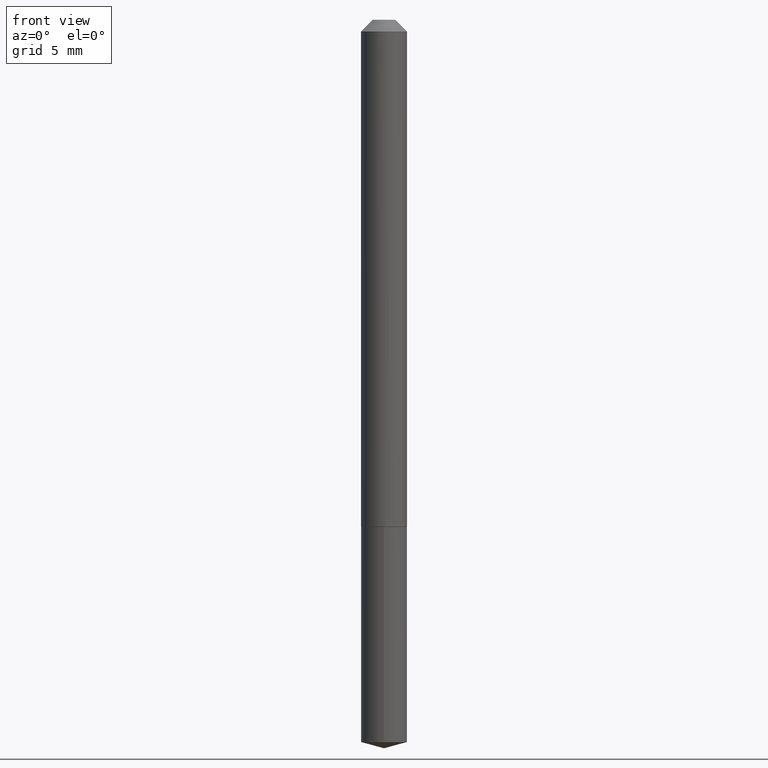
[diagram: clean part render]
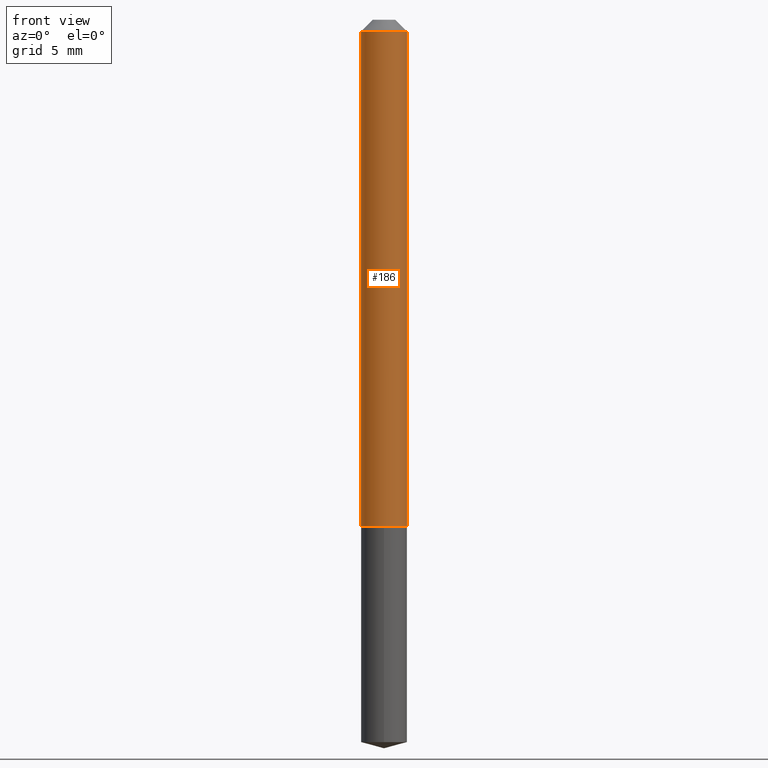
[diagram: same view with one face highlighted and labeled with its STEP entity id]
A machine part, front view. The second image highlights one B-rep face of the part: STEP entity #186.
In plain terms, the highlighted cylindrical surface (edge-blend (fillet) strip) has radius 1.5494 mm, axis along (-0, 0, 1).
Its self-contained STEP definition (entity closure, byte-faithful):
#21 = ORIENTED_EDGE ( 'NONE', *, *, #378, .T. ) ;
#41 = DIRECTION ( 'NONE',  ( 1.000000000000000000, -6.982962677686266711E-15, 4.876176775795935793E-29 ) ) ;
#43 = DIRECTION ( 'NONE',  ( -2.445468806185136597E-29, 3.491481338843145583E-15, 1.000000000000000000 ) ) ;
#65 = DIRECTION ( 'NONE',  ( -2.445468806185136877E-29, 3.491481338843145188E-15, 1.000000000000000000 ) ) ;
#74 = VECTOR ( 'NONE', #65, 39.37007874015748143 ) ;
#76 = DIRECTION ( 'NONE',  ( 1.000000000000000000, -6.982962677686265922E-15, 0.000000000000000000 ) ) ;
#78 = VERTEX_POINT ( 'NONE', #217 ) ;
#82 = AXIS2_PLACEMENT_3D ( 'NONE', #171, #327, #76 ) ;
#85 = EDGE_CURVE ( 'NONE', #248, #238, #216, .T. ) ;
#115 = ORIENTED_EDGE ( 'NONE', *, *, #158, .F. ) ;
#128 = FACE_OUTER_BOUND ( 'NONE', #169, .T. ) ;
#158 = EDGE_CURVE ( 'NONE', #78, #248, #318, .T. ) ;
#163 = DIRECTION ( 'NONE',  ( -2.445468806185136877E-29, 3.491481338843145188E-15, 1.000000000000000000 ) ) ;
#169 = EDGE_LOOP ( 'NONE', ( #115, #21, #202, #179 ) ) ;
#171 = CARTESIAN_POINT ( 'NONE',  ( 3.281574591019834273E-29, -4.685218808593615871E-15, -1.341899999999999649 ) ) ;
#179 = ORIENTED_EDGE ( 'NONE', *, *, #85, .F. ) ;
#186 = ADVANCED_FACE ( 'NONE', ( #128 ), #252, .T. ) ;
#196 = CARTESIAN_POINT ( 'NONE',  ( -0.06100000000000008193, 4.334310688136616956E-16, -3.000550405055496697E-30 ) ) ;
#199 = CARTESIAN_POINT ( 'NONE',  ( 0.06100000000000016520, -5.111179531932479308E-15, -1.341899999999999649 ) ) ;
#202 = ORIENTED_EDGE ( 'NONE', *, *, #232, .T. ) ;
#216 = CIRCLE ( 'NONE', #265, 0.06099999999999999173 ) ;
#217 = CARTESIAN_POINT ( 'NONE',  ( -0.06100000000000016520, -4.251787739779952795E-15, -1.341899999999999649 ) ) ;
#222 = CARTESIAN_POINT ( 'NONE',  ( -0.06099999999999999173, -1.963732731402569410E-15, -0.03125000000000020123 ) ) ;
#228 = LINE ( 'NONE', #258, #74 ) ;
#232 = EDGE_CURVE ( 'NONE', #299, #238, #228, .T. ) ;
#238 = VERTEX_POINT ( 'NONE', #379 ) ;
#242 = CARTESIAN_POINT ( 'NONE',  ( 7.642090019328601786E-31, -1.091087918388490144E-16, -0.03125000000000020123 ) ) ;
#246 = AXIS2_PLACEMENT_3D ( 'NONE', #355, #43, #41 ) ;
#248 = VERTEX_POINT ( 'NONE', #222 ) ;
#252 = CYLINDRICAL_SURFACE ( 'NONE', #246, 0.06100000000000008193 ) ;
#258 = CARTESIAN_POINT ( 'NONE',  ( 0.06100000000000008193, -4.259607233388628452E-16, 2.974467833235524715E-30 ) ) ;
#265 = AXIS2_PLACEMENT_3D ( 'NONE', #242, #364, #339 ) ;
#283 = VECTOR ( 'NONE', #163, 39.37007874015748143 ) ;
#299 = VERTEX_POINT ( 'NONE', #199 ) ;
#318 = LINE ( 'NONE', #196, #283 ) ;
#327 = DIRECTION ( 'NONE',  ( -2.445468806185136597E-29, 3.491481338843145583E-15, 1.000000000000000000 ) ) ;
#339 = DIRECTION ( 'NONE',  ( 1.000000000000000000, -6.982962677686267499E-15, 0.000000000000000000 ) ) ;
#355 = CARTESIAN_POINT ( 'NONE',  ( 0.000000000000000000, 0.000000000000000000, 0.000000000000000000 ) ) ;
#364 = DIRECTION ( 'NONE',  ( -2.445468806185136597E-29, 3.491481338843145583E-15, 1.000000000000000000 ) ) ;
#376 = CIRCLE ( 'NONE', #82, 0.06100000000000016520 ) ;
#378 = EDGE_CURVE ( 'NONE', #78, #299, #376, .T. ) ;
#379 = CARTESIAN_POINT ( 'NONE',  ( 0.06099999999999999173, -5.350695151777112556E-16, -0.03125000000000020123 ) ) ;